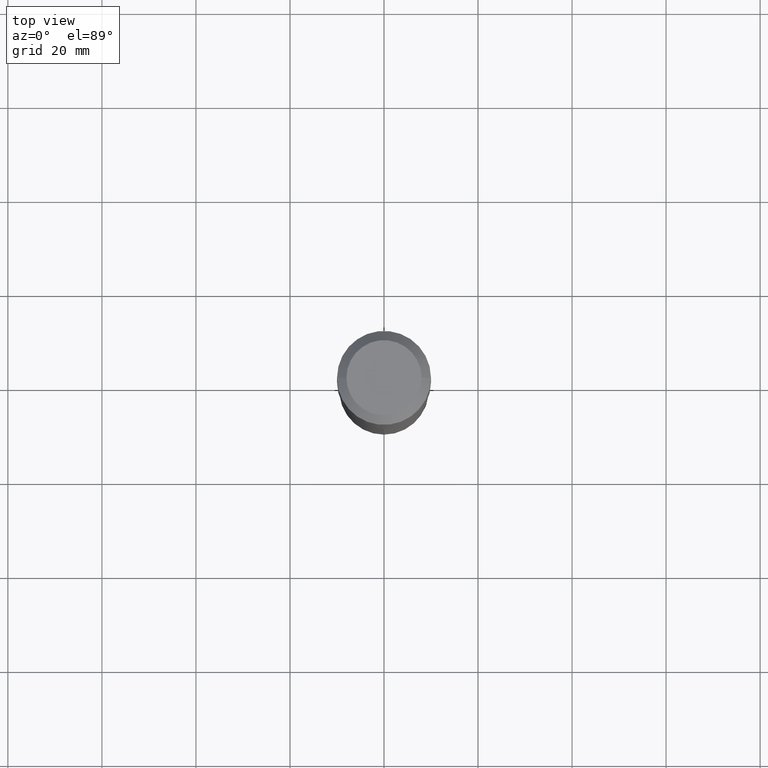
[diagram: clean part render]
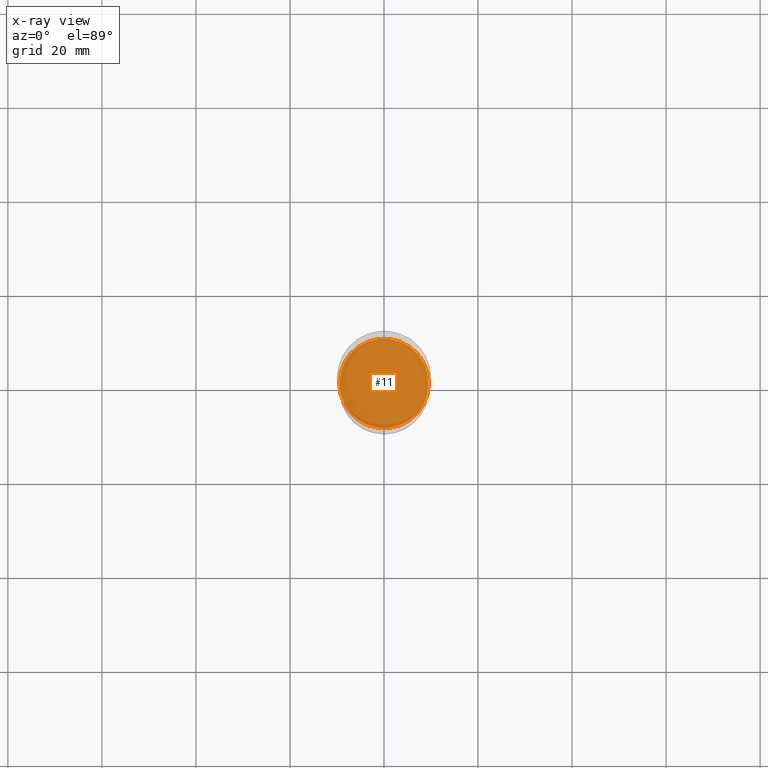
[diagram: x-ray — body ghosted, one internal face saturated and labeled with its STEP entity id]
A machine part, top view, then the same camera in x-ray: the body is ghosted and one INTERNAL B-rep face — a face not visible from any outside direction — is saturated and labeled: STEP entity #11.
In plain terms, the highlighted planar face has unit normal (-0, 0, 1).
Its self-contained STEP definition (entity closure, byte-faithful):
#11 = ADVANCED_FACE ( 'NONE', ( #111 ), #411, .F. ) ;
#28 = EDGE_CURVE ( 'NONE', #220, #469, #135, .T. ) ;
#70 = DIRECTION ( 'NONE',  ( -2.438088387897960049E-29, 3.491481338843145188E-15, 1.000000000000000000 ) ) ;
#90 = AXIS2_PLACEMENT_3D ( 'NONE', #159, #377, #449 ) ;
#96 = EDGE_CURVE ( 'NONE', #469, #220, #180, .T. ) ;
#111 = FACE_OUTER_BOUND ( 'NONE', #184, .T. ) ;
#119 = CARTESIAN_POINT ( 'NONE',  ( 6.842421719706012162E-29, -9.769164786083122090E-15, -2.798000000000000043 ) ) ;
#135 = CIRCLE ( 'NONE', #90, 0.3745000000000000551 ) ;
#159 = CARTESIAN_POINT ( 'NONE',  ( 6.842421719706012162E-29, -9.769164786083122090E-15, -2.798000000000000043 ) ) ;
#162 = DIRECTION ( 'NONE',  ( 1.000000000000000000, -6.982962677686268288E-15, 0.000000000000000000 ) ) ;
#180 = CIRCLE ( 'NONE', #328, 0.3745000000000000551 ) ;
#184 = EDGE_LOOP ( 'NONE', ( #337, #331 ) ) ;
#191 = CARTESIAN_POINT ( 'NONE',  ( -0.3745000000000000551, -7.105533013487436091E-15, -2.798000000000000043 ) ) ;
#215 = CARTESIAN_POINT ( 'NONE',  ( 0.3745000000000000551, -1.238428430887663068E-14, -2.798000000000000043 ) ) ;
#220 = VERTEX_POINT ( 'NONE', #215 ) ;
#226 = DIRECTION ( 'NONE',  ( 1.000000000000000000, -6.982962677686265922E-15, 4.876176775795935793E-29 ) ) ;
#271 = DIRECTION ( 'NONE',  ( -2.445468806185136597E-29, 3.491481338843145583E-15, 1.000000000000000000 ) ) ;
#328 = AXIS2_PLACEMENT_3D ( 'NONE', #119, #271, #162 ) ;
#331 = ORIENTED_EDGE ( 'NONE', *, *, #96, .F. ) ;
#337 = ORIENTED_EDGE ( 'NONE', *, *, #28, .F. ) ;
#369 = CARTESIAN_POINT ( 'NONE',  ( 6.842421719706012162E-29, -9.769164786083122090E-15, -2.798000000000000043 ) ) ;
#377 = DIRECTION ( 'NONE',  ( -2.445468806185136597E-29, 3.491481338843145583E-15, 1.000000000000000000 ) ) ;
#411 = PLANE ( 'NONE',  #451 ) ;
#449 = DIRECTION ( 'NONE',  ( 1.000000000000000000, -6.982962677686268288E-15, 0.000000000000000000 ) ) ;
#451 = AXIS2_PLACEMENT_3D ( 'NONE', #369, #70, #226 ) ;
#469 = VERTEX_POINT ( 'NONE', #191 ) ;